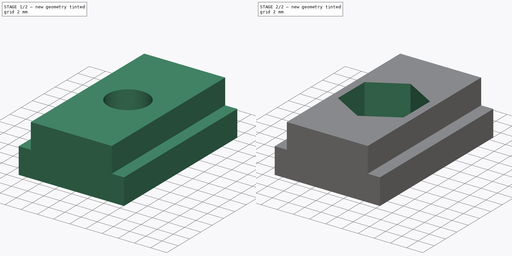
[diagram: build sequence overview — one tinted view per stage of 2, left to right]
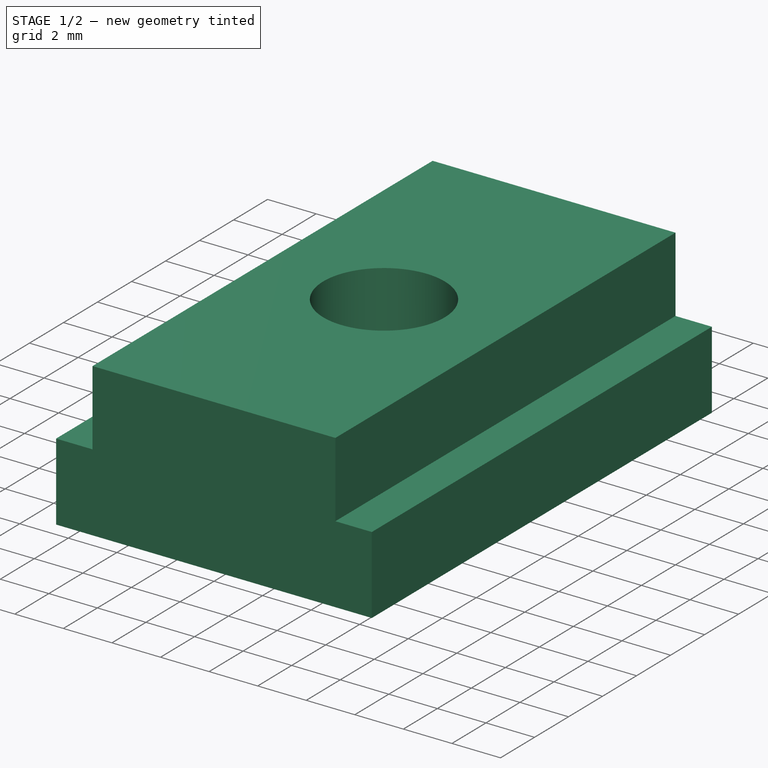
[diagram: stage 1 of 2 — iso view after this stage's code; geometry added in this stage tinted green]
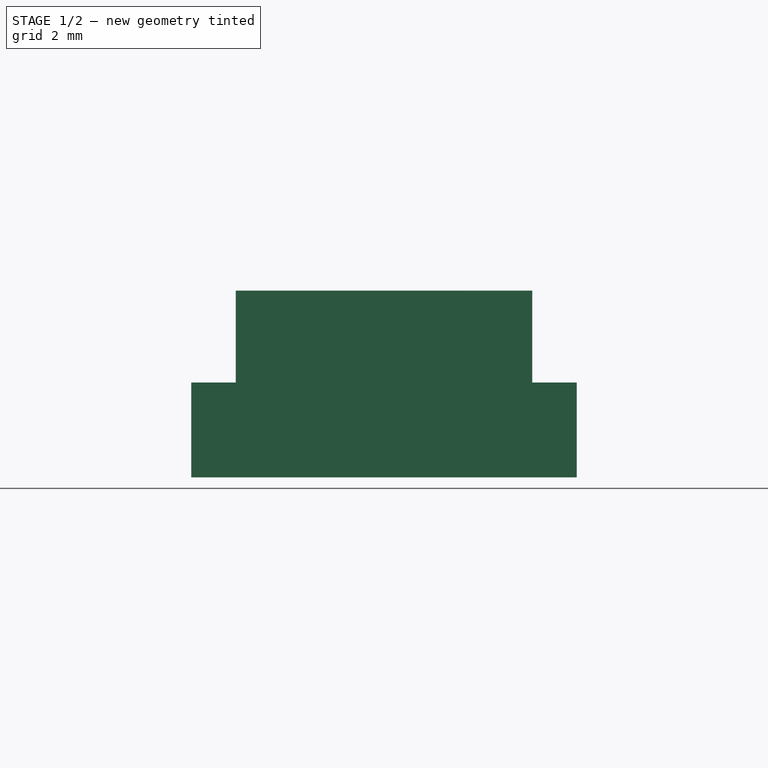
[diagram: stage 1 of 2 — front view after this stage's code; geometry added in this stage tinted green]
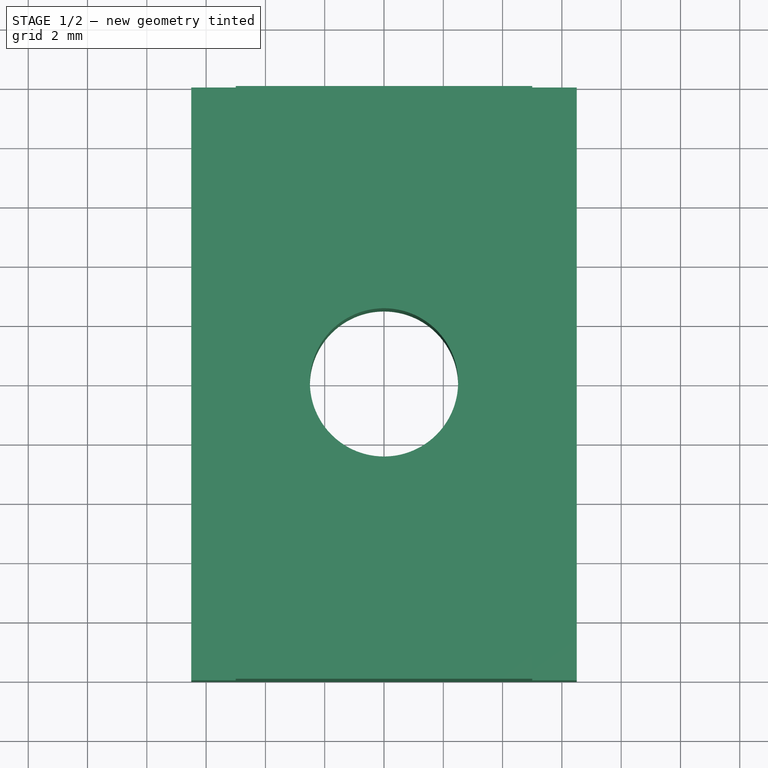
[diagram: stage 1 of 2 — top view after this stage's code; geometry added in this stage tinted green]
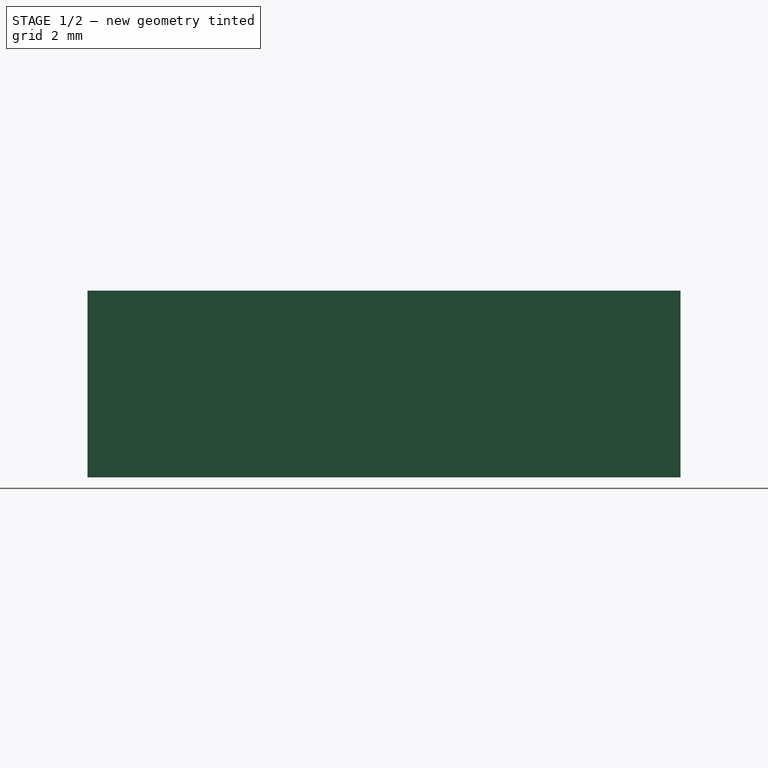
[diagram: stage 1 of 2 — right view after this stage's code; geometry added in this stage tinted green]
FCSTD DOCUMENT  (FreeCAD 0.19R23141 (Git))
Label: cnc_side_nut_M5
License: All rights reserved
LicenseURL: http://en.wikipedia.org/wiki/All_rights_reserved
objects: Sketcher::SketchObject×3, PartDesign::Pocket×2, PartDesign::Pad×1, PartDesign::Body×1
note: 10 computed .brp shape members not serialized (recipe doc carries the construction recipe); baked Part::Feature solids carry a one-line shape summary decoded from their .brp

FEATURE [Sketcher::SketchObject] Sketch
  MapMode = 5
  Placement = pos=(0,0,0) rot=(1,0,0;1.5708rad)
  Support = -> [XZ_Plane]
  sketch-geometry (10):
    g0: LineSegment StartX=-6.5 StartY=0 StartZ=0 EndX=-6.5 EndY=3.2 EndZ=0
    g1: LineSegment StartX=-6.5 StartY=3.2 StartZ=0 EndX=-5 EndY=3.2 EndZ=0
    g2: LineSegment StartX=-5 StartY=3.2 StartZ=0 EndX=-5 EndY=6.3 EndZ=0
    g3: LineSegment StartX=-5 StartY=6.3 StartZ=0 EndX=5 EndY=6.3 EndZ=0
    g4: LineSegment StartX=5 StartY=6.3 StartZ=0 EndX=5 EndY=3.2 EndZ=0
    g5: LineSegment StartX=5 StartY=3.2 StartZ=0 EndX=6.5 EndY=3.2 EndZ=0
    g6: LineSegment StartX=6.5 StartY=3.2 StartZ=0 EndX=6.5 EndY=0 EndZ=0
    g7: LineSegment StartX=6.5 StartY=0 StartZ=0 EndX=0 EndY=0 EndZ=0
    g8: LineSegment StartX=0 StartY=0 StartZ=0 EndX=-6.5 EndY=0 EndZ=0
    g9: LineSegment [constr] StartX=-5 StartY=6.3 StartZ=0 EndX=-0.158977 EndY=-0.079486 EndZ=0
  constraints (27):
    c: Coincident(g0,g1)
    c: Horizontal(g1)
    c: Coincident(g1,g2)
    c: Vertical(g2)
    c: Coincident(g2,g3)
    c: Horizontal(g3)
    c: Coincident(g3,g4)
    c: Vertical(g4)
    c: Coincident(g4,g5)
    c: Horizontal(g5)
    c: Coincident(g5,g6)
    c: Vertical(g6)
    c: Coincident(g6,g7)
    c: Coincident(g7,g-1)
    c: Horizontal(g7)
    c: Coincident(g7,g8)
    c: Coincident(g8,g0)
    c: Horizontal(g8)
    c: Equal(g8,g7)
    c: Vertical(g0)
    c: Equal(g1,g5)
    c: Equal(g6,g0)
    c: Coincident(g2,g9)
    c: DistanceX(g3,g3) = 10
    c: DistanceX(g0,g5) = 13
    c: DistanceY(g6,g6) = 3.2
    c: DistanceY(g4,g4) = 3.1
FEATURE [PartDesign::Pad] Pad
  Direction = (1,1,1)
  Length = 20
  Length2 = 100
  Midplane = true
  Placement = pos=(0,0,0) rot=(1,0,0;1.5708rad)
  Profile = -> Sketch
  Type = 0
FEATURE [Sketcher::SketchObject] Sketch001
  MapMode = 5
  Placement = pos=(0,-1.4e-15,6.3) rot=(0,0,1;3.14159rad)
  Support = -> [Pad]
  sketch-geometry (1):
    g0: Circle CenterX=0 CenterY=0 CenterZ=0 NormalX=0 NormalY=0 NormalZ=1 AngleXU=0 Radius=2.5
  constraints (2):
    c: Coincident(g0,g-1)
    c: Diameter(g0) = 5
FEATURE [PartDesign::Pocket] Pocket
  BaseFeature = -> Pad
  Length = 5
  Length2 = 100
  Placement = pos=(0,0,0) rot=(1,0,0;1.5708rad)
  Profile = -> Sketch001
  Type = 1
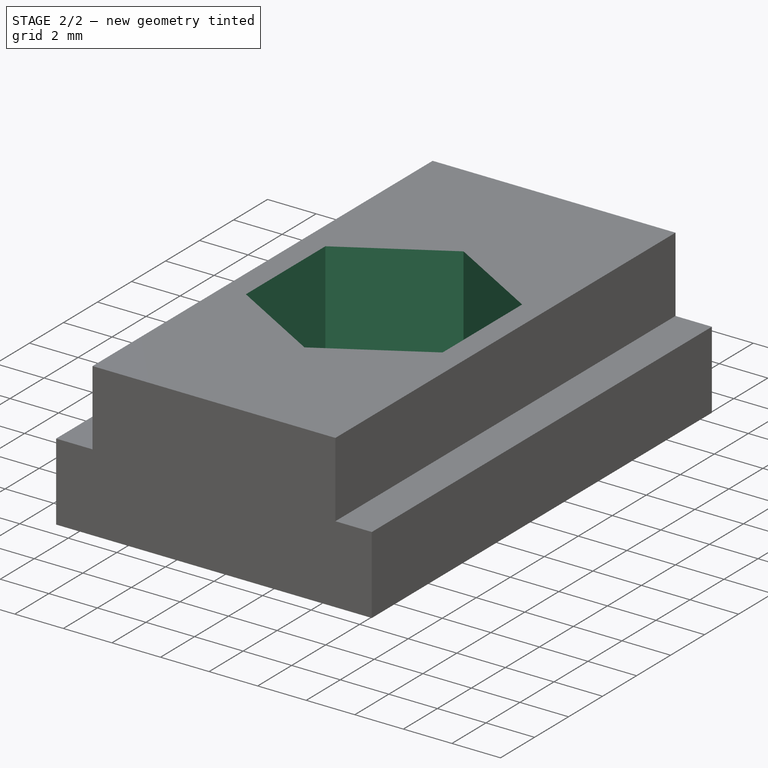
[diagram: stage 2 of 2 — iso view after this stage's code; geometry added in this stage tinted green]
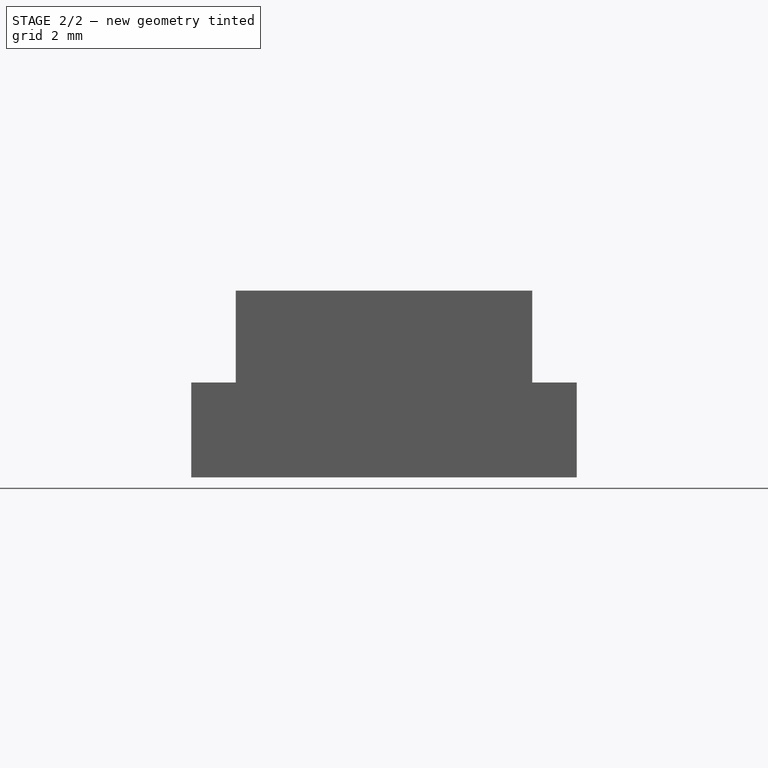
[diagram: stage 2 of 2 — front view after this stage's code; geometry added in this stage tinted green]
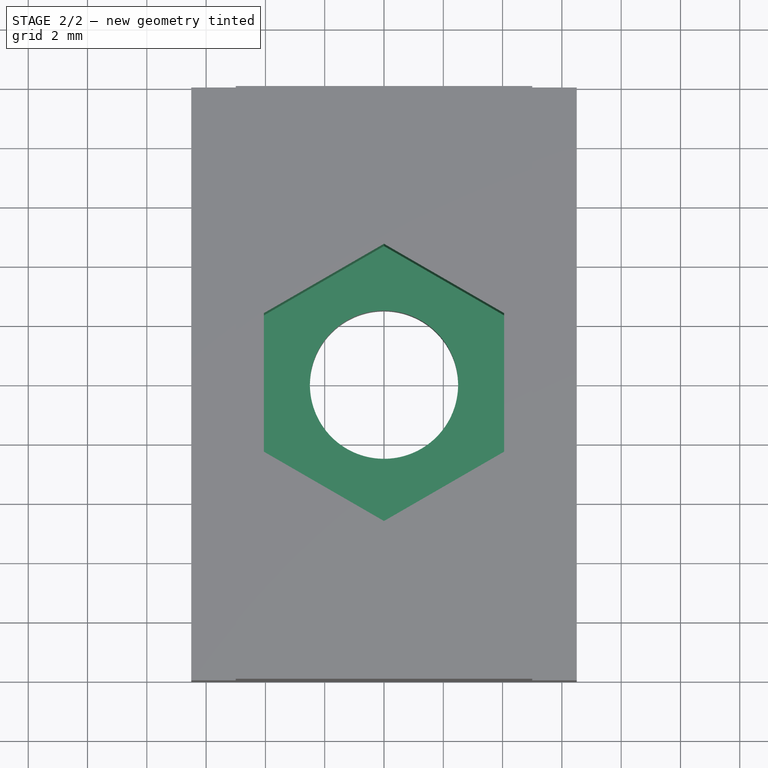
[diagram: stage 2 of 2 — top view after this stage's code; geometry added in this stage tinted green]
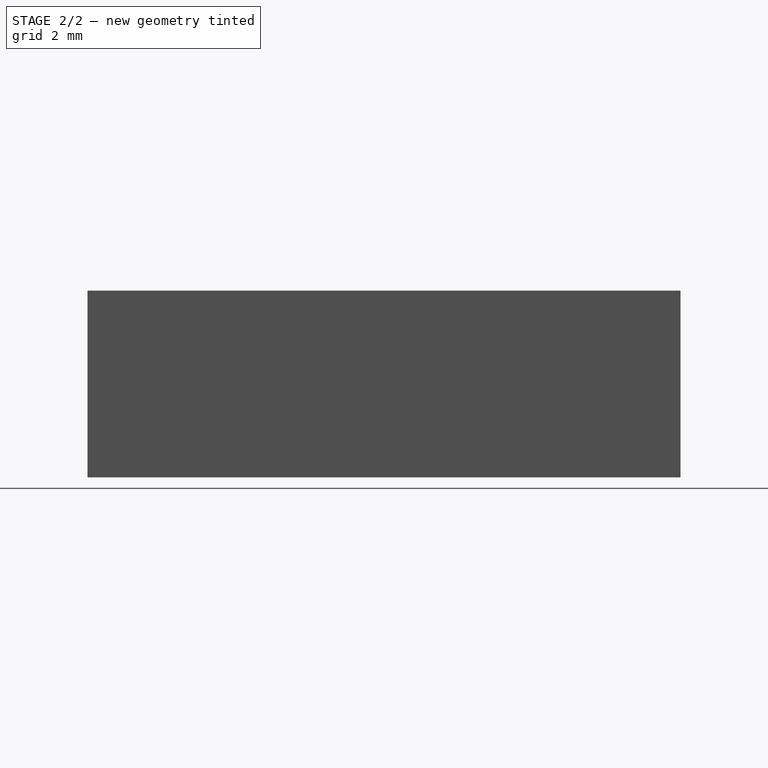
[diagram: stage 2 of 2 — right view after this stage's code; geometry added in this stage tinted green]
FEATURE [Sketcher::SketchObject] Sketch002
  ExternalGeometry = -> [Pocket]
  MapMode = 5
  Placement = pos=(0,-1.4e-15,6.3) rot=(0,0,1;3.14159rad)
  Support = -> [Pocket]
  sketch-geometry (7):
    g0: LineSegment StartX=-4.05 StartY=2.33827 StartZ=0 EndX=-4.05 EndY=-2.33827 EndZ=0
    g1: LineSegment StartX=-4.05 StartY=-2.33827 StartZ=0 EndX=-9e-16 EndY=-4.67654 EndZ=0
    g2: LineSegment StartX=-9e-16 StartY=-4.67654 StartZ=0 EndX=4.05 EndY=-2.33827 EndZ=0
    g3: LineSegment StartX=4.05 StartY=-2.33827 StartZ=0 EndX=4.05 EndY=2.33827 EndZ=0
    g4: LineSegment StartX=4.05 StartY=2.33827 StartZ=0 EndX=-9e-16 EndY=4.67654 EndZ=0
    g5: LineSegment StartX=-9e-16 StartY=4.67654 StartZ=0 EndX=-4.05 EndY=2.33827 EndZ=0
    g6: Circle [constr] CenterX=0 CenterY=0 CenterZ=0 NormalX=0 NormalY=0 NormalZ=1 AngleXU=0 Radius=4.67654
  constraints (16):
    c: Coincident(g0,g1)
    c: Coincident(g1,g2)
    c: Coincident(g2,g3)
    c: Coincident(g3,g4)
    c: Coincident(g4,g5)
    c: Coincident(g5,g0)
    c: Equal(g0, g1-g5) x5
    c: PointOnObject(g0,g6)
    c: PointOnObject(g1,g6)
    c: PointOnObject(g2,g6)
    c: PointOnObject(g3,g6)
    c: PointOnObject(g4,g6)
    c: PointOnObject(g5,g6)
    c: Coincident(g6,g-1)
    c: Vertical(g0)
    c: DistanceX(g0,g3) = 8.1
FEATURE [PartDesign::Pocket] Pocket001
  BaseFeature = -> Pocket
  Length = 4.5
  Length2 = 100
  Placement = pos=(0,0,0) rot=(1,0,0;1.5708rad)
  Profile = -> Sketch002
  Type = 0
FEATURE [PartDesign::Body] Body
  Group = -> [Sketch,Pad,Sketch001,Pocket,Sketch002,Pocket001]
  Origin = -> Origin
  Tip = -> Pocket001
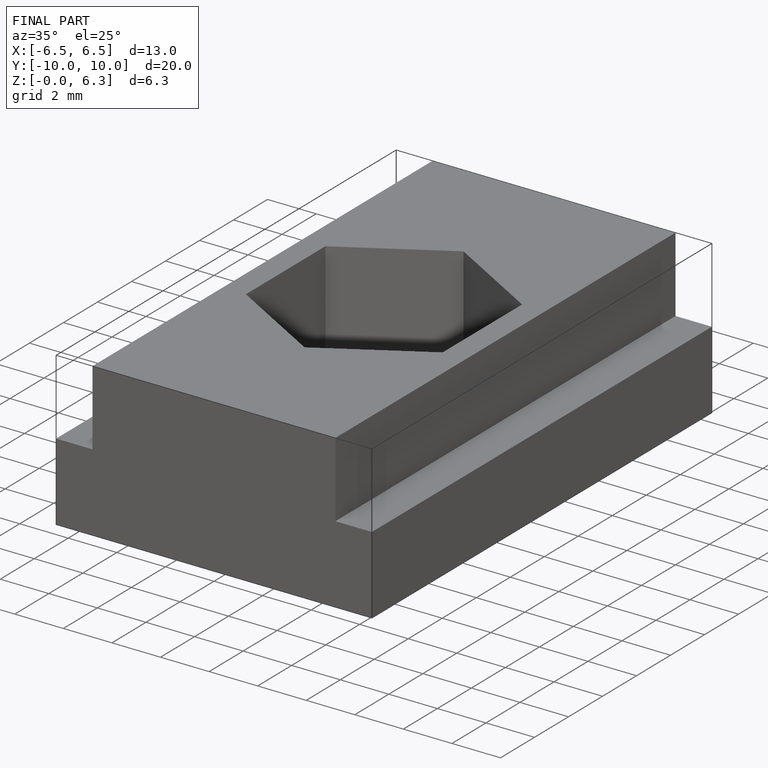
[diagram: finished part — iso view with bounding-box wireframe]
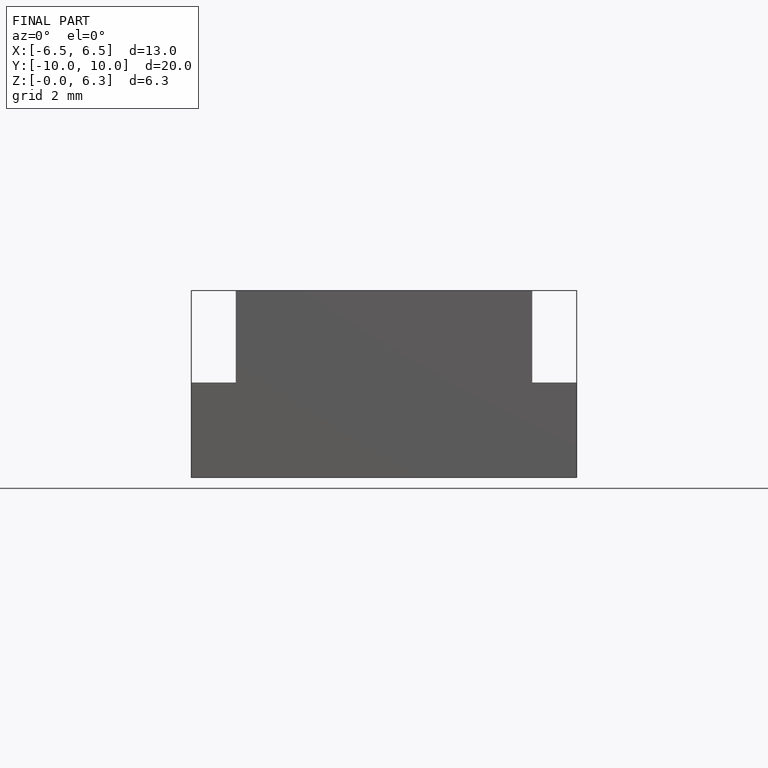
[diagram: finished part — front view with bounding-box wireframe]
